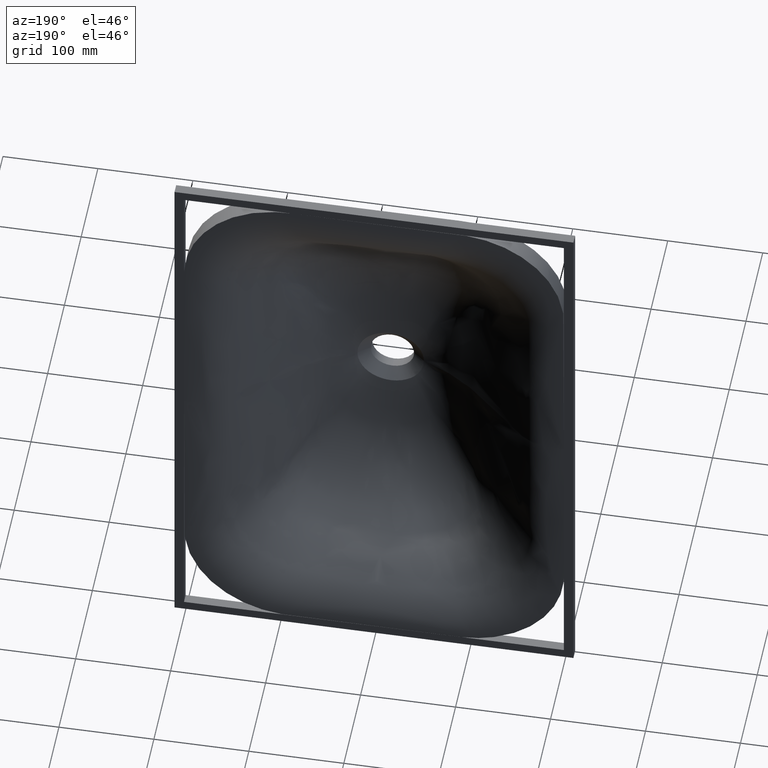
[diagram: clean part render]
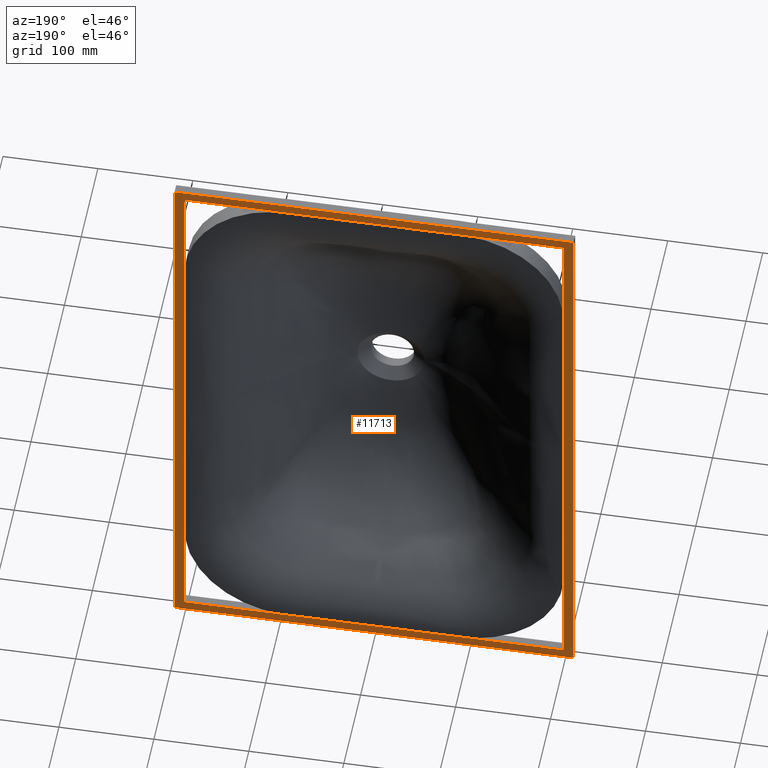
[diagram: same view with one face highlighted and labeled with its STEP entity id]
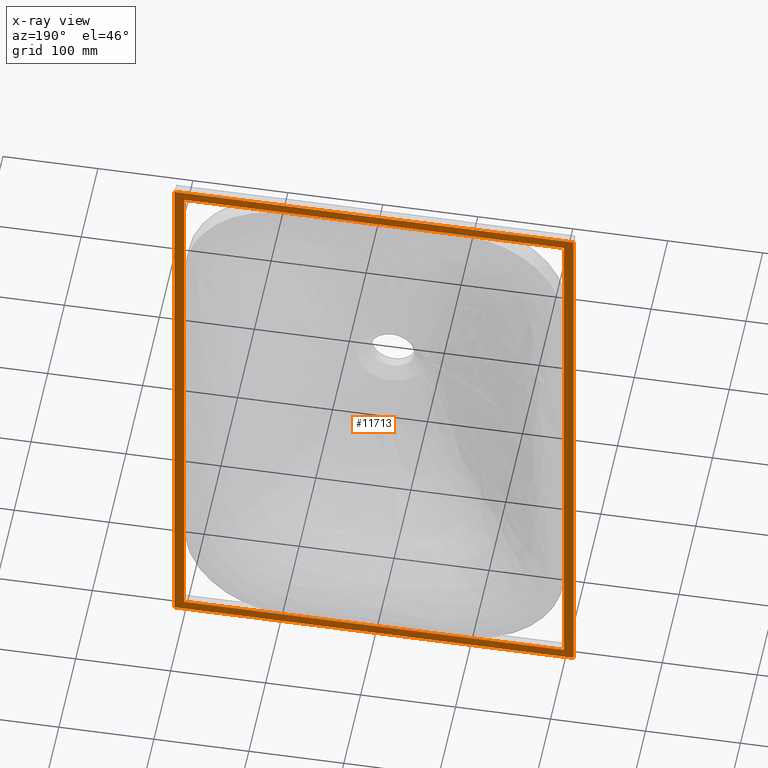
[diagram: x-ray of the same camera — body ghosted, the highlighted face saturated]
A machine part, auxiliary view. The second image highlights one B-rep face of the part: STEP entity #11713.
The next image is the same camera in x-ray: the body ghosted, the highlighted face saturated — about 0% of this face is hidden behind the body in this view.
In plain terms, the highlighted planar face has unit normal (0, -1, 0).
Its self-contained STEP definition (entity closure, byte-faithful):
#260 = CARTESIAN_POINT ( 'NONE',  ( -210.0000000000000300, 120.0000000000000000, 310.0000000000000000 ) ) ;
#891 = EDGE_CURVE ( 'NONE', #9226, #7608, #3581, .T. ) ;
#1016 = EDGE_CURVE ( 'NONE', #6903, #7414, #8671, .T. ) ;
#1124 = CARTESIAN_POINT ( 'NONE',  ( 200.0000000000000000, 120.0000000000000000, 300.0000000000000000 ) ) ;
#1511 = EDGE_CURVE ( 'NONE', #4549, #7588, #9333, .T. ) ;
#1581 = EDGE_CURVE ( 'NONE', #7588, #7219, #5136, .T. ) ;
#2053 = CARTESIAN_POINT ( 'NONE',  ( 210.0000000000000000, 120.0000000000000000, -310.0000000000000000 ) ) ;
#2846 = CARTESIAN_POINT ( 'NONE',  ( 199.9999999999999700, 120.0000000000000000, -300.0000000000000000 ) ) ;
#3452 = ORIENTED_EDGE ( 'NONE', *, *, #1581, .T. ) ;
#3581 = LINE ( 'NONE', #1124, #3601 ) ;
#3601 = VECTOR ( 'NONE', #8772, 1000.000000000000000 ) ;
#3634 = LINE ( 'NONE', #6793, #5480 ) ;
#4047 = VECTOR ( 'NONE', #8342, 1000.000000000000000 ) ;
#4059 = LINE ( 'NONE', #8589, #4047 ) ;
#4086 = FACE_OUTER_BOUND ( 'NONE', #5456, .T. ) ;
#4179 = VECTOR ( 'NONE', #13855, 1000.000000000000000 ) ;
#4314 = LINE ( 'NONE', #13023, #4871 ) ;
#4351 = FACE_BOUND ( 'NONE', #6454, .T. ) ;
#4549 = VERTEX_POINT ( 'NONE', #260 ) ;
#4700 = LINE ( 'NONE', #12691, #4179 ) ;
#4871 = VECTOR ( 'NONE', #11960, 1000.000000000000000 ) ;
#4938 = ORIENTED_EDGE ( 'NONE', *, *, #891, .F. ) ;
#5136 = LINE ( 'NONE', #13423, #8555 ) ;
#5269 = VECTOR ( 'NONE', #11004, 1000.000000000000000 ) ;
#5456 = EDGE_LOOP ( 'NONE', ( #3452, #11440, #8045, #11376 ) ) ;
#5480 = VECTOR ( 'NONE', #6796, 1000.000000000000000 ) ;
#5548 = EDGE_CURVE ( 'NONE', #7219, #7145, #4700, .T. ) ;
#6339 = EDGE_CURVE ( 'NONE', #7414, #9226, #4314, .T. ) ;
#6454 = EDGE_LOOP ( 'NONE', ( #8470, #9176, #4938, #6561 ) ) ;
#6561 = ORIENTED_EDGE ( 'NONE', *, *, #6339, .F. ) ;
#6785 = VECTOR ( 'NONE', #13537, 1000.000000000000000 ) ;
#6793 = CARTESIAN_POINT ( 'NONE',  ( -210.0000000000000000, 120.0000000000000000, -310.0000000000000000 ) ) ;
#6796 = DIRECTION ( 'NONE',  ( -4.476705744456276700E-017, 0.0000000000000000000, 1.000000000000000000 ) ) ;
#6903 = VERTEX_POINT ( 'NONE', #2846 ) ;
#7145 = VERTEX_POINT ( 'NONE', #9037 ) ;
#7219 = VERTEX_POINT ( 'NONE', #2053 ) ;
#7414 = VERTEX_POINT ( 'NONE', #8464 ) ;
#7588 = VERTEX_POINT ( 'NONE', #11138 ) ;
#7608 = VERTEX_POINT ( 'NONE', #13257 ) ;
#8045 = ORIENTED_EDGE ( 'NONE', *, *, #13816, .T. ) ;
#8342 = DIRECTION ( 'NONE',  ( -4.625929269271485800E-017, -0.0000000000000000000, -1.000000000000000000 ) ) ;
#8464 = CARTESIAN_POINT ( 'NONE',  ( -199.9999999999999700, 120.0000000000000000, -300.0000000000000000 ) ) ;
#8470 = ORIENTED_EDGE ( 'NONE', *, *, #1016, .F. ) ;
#8555 = VECTOR ( 'NONE', #12863, 1000.000000000000000 ) ;
#8589 = CARTESIAN_POINT ( 'NONE',  ( 199.9999999999999700, 120.0000000000000000, -300.0000000000000000 ) ) ;
#8671 = LINE ( 'NONE', #8949, #5269 ) ;
#8772 = DIRECTION ( 'NONE',  ( 1.000000000000000000, -0.0000000000000000000, -0.0000000000000000000 ) ) ;
#8949 = CARTESIAN_POINT ( 'NONE',  ( 199.9999999999999700, 120.0000000000000000, -300.0000000000000000 ) ) ;
#8993 = DIRECTION ( 'NONE',  ( 0.0000000000000000000, -0.0000000000000000000, -1.000000000000000000 ) ) ;
#8994 = DIRECTION ( 'NONE',  ( 0.0000000000000000000, -1.000000000000000000, 0.0000000000000000000 ) ) ;
#9037 = CARTESIAN_POINT ( 'NONE',  ( -210.0000000000000000, 120.0000000000000000, -310.0000000000000000 ) ) ;
#9044 = PLANE ( 'NONE',  #13665 ) ;
#9176 = ORIENTED_EDGE ( 'NONE', *, *, #12644, .F. ) ;
#9226 = VERTEX_POINT ( 'NONE', #12378 ) ;
#9333 = LINE ( 'NONE', #9742, #6785 ) ;
#9614 = CARTESIAN_POINT ( 'NONE',  ( 0.0000000000000000000, 120.0000000000000000, 0.0000000000000000000 ) ) ;
#9742 = CARTESIAN_POINT ( 'NONE',  ( 210.0000000000000000, 120.0000000000000000, 310.0000000000000000 ) ) ;
#11004 = DIRECTION ( 'NONE',  ( -1.000000000000000000, 0.0000000000000000000, 0.0000000000000000000 ) ) ;
#11138 = CARTESIAN_POINT ( 'NONE',  ( 210.0000000000000000, 120.0000000000000000, 310.0000000000000000 ) ) ;
#11376 = ORIENTED_EDGE ( 'NONE', *, *, #1511, .T. ) ;
#11440 = ORIENTED_EDGE ( 'NONE', *, *, #5548, .T. ) ;
#11713 = ADVANCED_FACE ( 'NONE', ( #4351, #4086 ), #9044, .F. ) ;
#11960 = DIRECTION ( 'NONE',  ( -4.625929269271485800E-017, 0.0000000000000000000, 1.000000000000000000 ) ) ;
#12378 = CARTESIAN_POINT ( 'NONE',  ( -200.0000000000000000, 120.0000000000000000, 300.0000000000000000 ) ) ;
#12644 = EDGE_CURVE ( 'NONE', #7608, #6903, #4059, .T. ) ;
#12691 = CARTESIAN_POINT ( 'NONE',  ( 210.0000000000000000, 120.0000000000000000, -310.0000000000000000 ) ) ;
#12863 = DIRECTION ( 'NONE',  ( -0.0000000000000000000, -0.0000000000000000000, -1.000000000000000000 ) ) ;
#13023 = CARTESIAN_POINT ( 'NONE',  ( -199.9999999999999700, 120.0000000000000000, -300.0000000000000000 ) ) ;
#13257 = CARTESIAN_POINT ( 'NONE',  ( 200.0000000000000000, 120.0000000000000000, 300.0000000000000000 ) ) ;
#13423 = CARTESIAN_POINT ( 'NONE',  ( 210.0000000000000000, 120.0000000000000000, -310.0000000000000000 ) ) ;
#13537 = DIRECTION ( 'NONE',  ( 1.000000000000000000, -0.0000000000000000000, -0.0000000000000000000 ) ) ;
#13665 = AXIS2_PLACEMENT_3D ( 'NONE', #9614, #8994, #8993 ) ;
#13816 = EDGE_CURVE ( 'NONE', #7145, #4549, #3634, .T. ) ;
#13855 = DIRECTION ( 'NONE',  ( -1.000000000000000000, 0.0000000000000000000, 0.0000000000000000000 ) ) ;